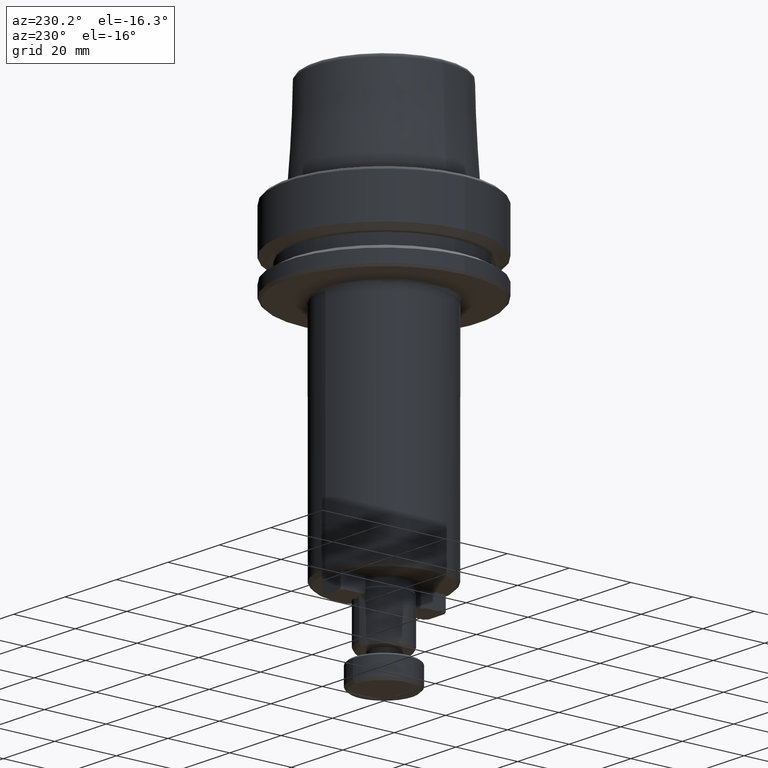
[diagram: clean part render]
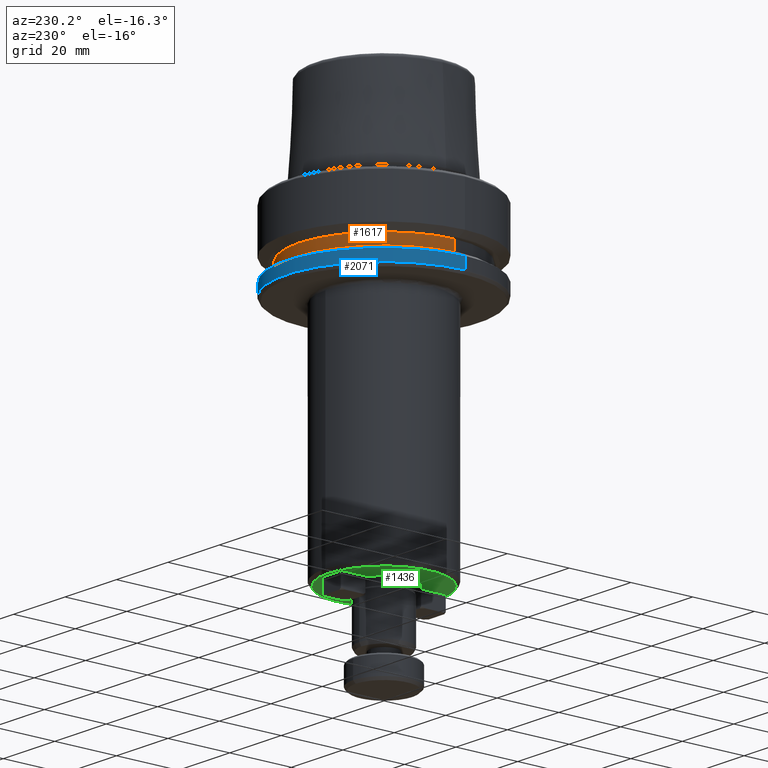
[diagram: same view with three faces highlighted in distinct colors, each labeled with its STEP entity id]
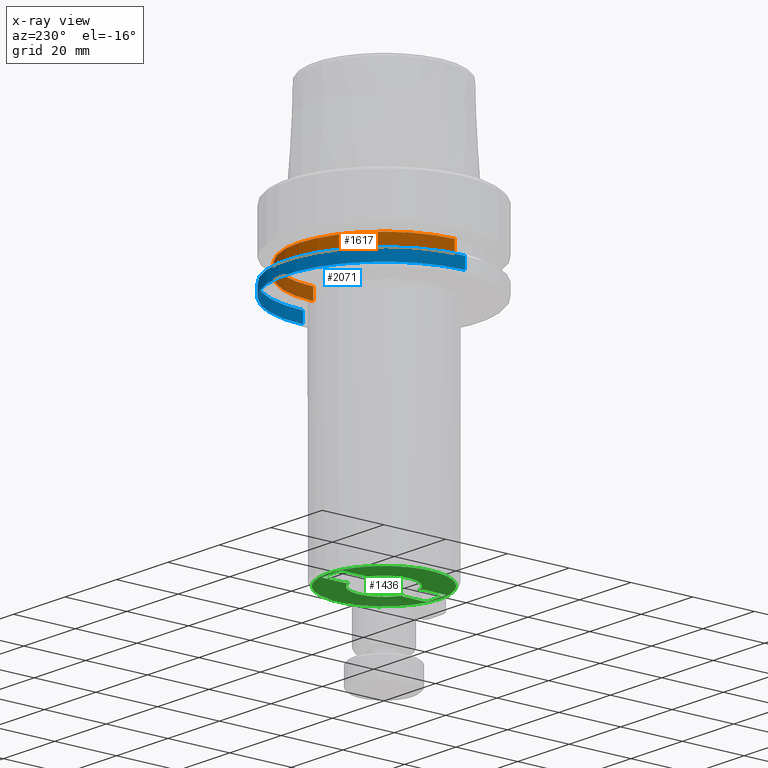
[diagram: x-ray of the same camera — body ghosted, the three highlighted faces saturated]
A machine part, auxiliary view with three faces highlighted in distinct colors.
The next image is the same camera in x-ray (body ghosted, the three faces saturated) — at least one of them is partly hidden behind the body in this view.
Their STEP definitions:

[orange] entity #1617 — the highlighted cylindrical surface (partial cylindrical patch) has radius 27.5 mm, axis along (-0, -0, 1).
#60 = LINE ( 'NONE', #1429, #1124 ) ;
#63 = EDGE_CURVE ( 'NONE', #2615, #378, #2659, .T. ) ;
#225 = DIRECTION ( 'NONE',  ( 1.000000000000000000, 0.0000000000000000000, 0.0000000000000000000 ) ) ;
#270 = DIRECTION ( 'NONE',  ( 1.000000000000000000, 0.0000000000000000000, 0.0000000000000000000 ) ) ;
#274 = DIRECTION ( 'NONE',  ( -0.0000000000000000000, -0.0000000000000000000, 1.000000000000000000 ) ) ;
#378 = VERTEX_POINT ( 'NONE', #1381 ) ;
#405 = VERTEX_POINT ( 'NONE', #2627 ) ;
#438 = CARTESIAN_POINT ( 'NONE',  ( 0.0000000000000000000, 0.0000000000000000000, -16.10000000000001600 ) ) ;
#444 = EDGE_CURVE ( 'NONE', #405, #1195, #60, .T. ) ;
#486 = CARTESIAN_POINT ( 'NONE',  ( 0.0000000000000000000, 0.0000000000000000000, -19.90000000000001600 ) ) ;
#536 = ORIENTED_EDGE ( 'NONE', *, *, #1410, .T. ) ;
#630 = CARTESIAN_POINT ( 'NONE',  ( 0.0000000000000000000, 0.0000000000000000000, 78.96908074195309300 ) ) ;
#693 = CARTESIAN_POINT ( 'NONE',  ( 27.49999999999999600, 0.0000000000000000000, -16.10000000000001600 ) ) ;
#953 = ORIENTED_EDGE ( 'NONE', *, *, #63, .T. ) ;
#997 = CYLINDRICAL_SURFACE ( 'NONE', #1755, 27.49999999999999600 ) ;
#1034 = CIRCLE ( 'NONE', #1524, 27.49999999999999600 ) ;
#1124 = VECTOR ( 'NONE', #1699, 1000.000000000000000 ) ;
#1195 = VERTEX_POINT ( 'NONE', #693 ) ;
#1201 = EDGE_LOOP ( 'NONE', ( #536, #953, #1544, #2371 ) ) ;
#1256 = DIRECTION ( 'NONE',  ( -0.0000000000000000000, -0.0000000000000000000, 1.000000000000000000 ) ) ;
#1381 = CARTESIAN_POINT ( 'NONE',  ( -27.49999999999999600, 3.367778697655220900E-015, -16.10000000000001600 ) ) ;
#1410 = EDGE_CURVE ( 'NONE', #405, #2615, #1034, .T. ) ;
#1429 = CARTESIAN_POINT ( 'NONE',  ( 27.49999999999999600, 0.0000000000000000000, 78.96908074195309300 ) ) ;
#1504 = CARTESIAN_POINT ( 'NONE',  ( -27.49999999999999600, 3.367778697655220900E-015, -19.90000000000001600 ) ) ;
#1512 = CIRCLE ( 'NONE', #1609, 27.49999999999999600 ) ;
#1524 = AXIS2_PLACEMENT_3D ( 'NONE', #486, #1777, #270 ) ;
#1544 = ORIENTED_EDGE ( 'NONE', *, *, #1641, .F. ) ;
#1573 = FACE_OUTER_BOUND ( 'NONE', #1201, .T. ) ;
#1609 = AXIS2_PLACEMENT_3D ( 'NONE', #438, #1256, #2102 ) ;
#1617 = ADVANCED_FACE ( 'NONE', ( #1573 ), #997, .T. ) ;
#1641 = EDGE_CURVE ( 'NONE', #1195, #378, #1512, .T. ) ;
#1699 = DIRECTION ( 'NONE',  ( -0.0000000000000000000, -0.0000000000000000000, 1.000000000000000000 ) ) ;
#1755 = AXIS2_PLACEMENT_3D ( 'NONE', #630, #1912, #225 ) ;
#1777 = DIRECTION ( 'NONE',  ( -0.0000000000000000000, -0.0000000000000000000, 1.000000000000000000 ) ) ;
#1912 = DIRECTION ( 'NONE',  ( -0.0000000000000000000, -0.0000000000000000000, 1.000000000000000000 ) ) ;
#2102 = DIRECTION ( 'NONE',  ( 1.000000000000000000, 0.0000000000000000000, 0.0000000000000000000 ) ) ;
#2231 = CARTESIAN_POINT ( 'NONE',  ( -27.49999999999999600, 3.367778697655220900E-015, 78.96908074195309300 ) ) ;
#2371 = ORIENTED_EDGE ( 'NONE', *, *, #444, .F. ) ;
#2593 = VECTOR ( 'NONE', #274, 1000.000000000000000 ) ;
#2615 = VERTEX_POINT ( 'NONE', #1504 ) ;
#2627 = CARTESIAN_POINT ( 'NONE',  ( 27.49999999999999600, 0.0000000000000000000, -19.90000000000001600 ) ) ;
#2659 = LINE ( 'NONE', #2231, #2593 ) ;

[blue] entity #2071 — the highlighted cylindrical surface (partial cylindrical patch) has radius 31.5 mm, axis along (-0, -0, 1).
#26 = VECTOR ( 'NONE', #2129, 1000.000000000000000 ) ;
#176 = ORIENTED_EDGE ( 'NONE', *, *, #1421, .T. ) ;
#226 = EDGE_CURVE ( 'NONE', #446, #1566, #1739, .T. ) ;
#307 = CARTESIAN_POINT ( 'NONE',  ( -31.50000000000000000, 3.857637417314162700E-015, 78.96908074195309300 ) ) ;
#399 = DIRECTION ( 'NONE',  ( -0.0000000000000000000, -0.0000000000000000000, 1.000000000000000000 ) ) ;
#402 = VECTOR ( 'NONE', #2064, 1000.000000000000000 ) ;
#446 = VERTEX_POINT ( 'NONE', #2481 ) ;
#528 = DIRECTION ( 'NONE',  ( -0.0000000000000000000, -0.0000000000000000000, 1.000000000000000000 ) ) ;
#654 = ORIENTED_EDGE ( 'NONE', *, *, #226, .F. ) ;
#864 = AXIS2_PLACEMENT_3D ( 'NONE', #2645, #1760, #1108 ) ;
#957 = CIRCLE ( 'NONE', #2104, 31.50000000000000000 ) ;
#998 = VERTEX_POINT ( 'NONE', #1927 ) ;
#1059 = CYLINDRICAL_SURFACE ( 'NONE', #864, 31.50000000000000000 ) ;
#1108 = DIRECTION ( 'NONE',  ( 1.000000000000000000, 0.0000000000000000000, 0.0000000000000000000 ) ) ;
#1296 = CARTESIAN_POINT ( 'NONE',  ( 31.50000000000000000, 0.0000000000000000000, 78.96908074195309300 ) ) ;
#1421 = EDGE_CURVE ( 'NONE', #998, #2693, #2048, .T. ) ;
#1430 = EDGE_CURVE ( 'NONE', #1566, #2693, #957, .T. ) ;
#1566 = VERTEX_POINT ( 'NONE', #2538 ) ;
#1682 = CARTESIAN_POINT ( 'NONE',  ( 0.0000000000000000000, 0.0000000000000000000, -25.03431457505077200 ) ) ;
#1739 = LINE ( 'NONE', #1296, #26 ) ;
#1760 = DIRECTION ( 'NONE',  ( -0.0000000000000000000, -0.0000000000000000000, 1.000000000000000000 ) ) ;
#1770 = FACE_OUTER_BOUND ( 'NONE', #2362, .T. ) ;
#1785 = ORIENTED_EDGE ( 'NONE', *, *, #2497, .T. ) ;
#1901 = DIRECTION ( 'NONE',  ( 1.000000000000000000, 0.0000000000000000000, 0.0000000000000000000 ) ) ;
#1927 = CARTESIAN_POINT ( 'NONE',  ( -31.50000000000000000, 3.857637417314161900E-015, -25.03431457505077200 ) ) ;
#1967 = CARTESIAN_POINT ( 'NONE',  ( -31.50000000000000000, 3.857637417314162700E-015, -21.37749907475931700 ) ) ;
#2048 = LINE ( 'NONE', #307, #402 ) ;
#2064 = DIRECTION ( 'NONE',  ( -0.0000000000000000000, -0.0000000000000000000, 1.000000000000000000 ) ) ;
#2071 = ADVANCED_FACE ( 'NONE', ( #1770 ), #1059, .T. ) ;
#2104 = AXIS2_PLACEMENT_3D ( 'NONE', #2787, #528, #2778 ) ;
#2129 = DIRECTION ( 'NONE',  ( -0.0000000000000000000, -0.0000000000000000000, 1.000000000000000000 ) ) ;
#2349 = AXIS2_PLACEMENT_3D ( 'NONE', #1682, #399, #1901 ) ;
#2350 = CIRCLE ( 'NONE', #2349, 31.50000000000000000 ) ;
#2362 = EDGE_LOOP ( 'NONE', ( #1785, #176, #2775, #654 ) ) ;
#2481 = CARTESIAN_POINT ( 'NONE',  ( 31.50000000000000000, 0.0000000000000000000, -25.03431457505077200 ) ) ;
#2497 = EDGE_CURVE ( 'NONE', #446, #998, #2350, .T. ) ;
#2538 = CARTESIAN_POINT ( 'NONE',  ( 31.50000000000000000, 0.0000000000000000000, -21.37749907475931700 ) ) ;
#2645 = CARTESIAN_POINT ( 'NONE',  ( 0.0000000000000000000, 0.0000000000000000000, 78.96908074195309300 ) ) ;
#2693 = VERTEX_POINT ( 'NONE', #1967 ) ;
#2775 = ORIENTED_EDGE ( 'NONE', *, *, #1430, .F. ) ;
#2778 = DIRECTION ( 'NONE',  ( 1.000000000000000000, 0.0000000000000000000, 0.0000000000000000000 ) ) ;
#2787 = CARTESIAN_POINT ( 'NONE',  ( 0.0000000000000000000, 0.0000000000000000000, -21.37749907475931700 ) ) ;

[green] entity #1436 — the highlighted planar face has unit normal (-0, 0, -1).
#23 = CARTESIAN_POINT ( 'NONE',  ( -3.600000000000001400, -17.00000000000000700, -100.0000000000000000 ) ) ;
#40 = VERTEX_POINT ( 'NONE', #1182 ) ;
#65 = DIRECTION ( 'NONE',  ( 3.614007241618347300E-016, 1.000000000000000000, -0.0000000000000000000 ) ) ;
#72 = CARTESIAN_POINT ( 'NONE',  ( 3.600000000000002300, 9.000000000000007100, -100.0000000000000000 ) ) ;
#85 = AXIS2_PLACEMENT_3D ( 'NONE', #977, #2287, #1202 ) ;
#119 = EDGE_CURVE ( 'NONE', #643, #817, #224, .T. ) ;
#142 = DIRECTION ( 'NONE',  ( -0.0000000000000000000, 7.401711423418070600E-017, -1.000000000000000000 ) ) ;
#160 = DIRECTION ( 'NONE',  ( 0.0000000000000000000, 1.000000000000000000, 0.0000000000000000000 ) ) ;
#168 = CARTESIAN_POINT ( 'NONE',  ( -3.600000000000000100, 17.00000000000000700, -100.0000000000000000 ) ) ;
#191 = CARTESIAN_POINT ( 'NONE',  ( -3.600000000000002300, -9.000000000000007100, -100.0000000000000000 ) ) ;
#192 = VERTEX_POINT ( 'NONE', #168 ) ;
#201 = DIRECTION ( 'NONE',  ( -3.614007241618347300E-016, -1.000000000000000000, 0.0000000000000000000 ) ) ;
#224 = LINE ( 'NONE', #72, #2446 ) ;
#244 = VERTEX_POINT ( 'NONE', #1734 ) ;
#250 = EDGE_CURVE ( 'NONE', #840, #2311, #1669, .T. ) ;
#267 = EDGE_CURVE ( 'NONE', #1594, #40, #2771, .T. ) ;
#271 = DIRECTION ( 'NONE',  ( 0.7071067811865483500, 0.7071067811865468000, 0.0000000000000000000 ) ) ;
#272 = VECTOR ( 'NONE', #201, 1000.000000000000000 ) ;
#296 = CIRCLE ( 'NONE', #1700, 9.479999999999995100 ) ;
#298 = ORIENTED_EDGE ( 'NONE', *, *, #680, .F. ) ;
#324 = CARTESIAN_POINT ( 'NONE',  ( 3.600000000000000100, -17.00000000000000700, -100.0000000000000000 ) ) ;
#340 = VERTEX_POINT ( 'NONE', #2281 ) ;
#342 = VERTEX_POINT ( 'NONE', #1253 ) ;
#373 = ORIENTED_EDGE ( 'NONE', *, *, #754, .F. ) ;
#437 = CARTESIAN_POINT ( 'NONE',  ( 0.0000000000000000000, 5.477266453329372300E-015, -100.0000000000000000 ) ) ;
#453 = DIRECTION ( 'NONE',  ( -1.000000000000000000, 0.0000000000000000000, 0.0000000000000000000 ) ) ;
#472 = VERTEX_POINT ( 'NONE', #794 ) ;
#477 = LINE ( 'NONE', #191, #2722 ) ;
#490 = LINE ( 'NONE', #2222, #2665 ) ;
#496 = ORIENTED_EDGE ( 'NONE', *, *, #909, .F. ) ;
#506 = DIRECTION ( 'NONE',  ( 0.7071067811865468000, -0.7071067811865483500, 0.0000000000000000000 ) ) ;
#511 = LINE ( 'NONE', #2026, #1583 ) ;
#545 = VERTEX_POINT ( 'NONE', #1191 ) ;
#548 = LINE ( 'NONE', #2351, #2801 ) ;
#557 = EDGE_CURVE ( 'NONE', #777, #643, #1754, .T. ) ;
#568 = LINE ( 'NONE', #1363, #1083 ) ;
#571 = VERTEX_POINT ( 'NONE', #2072 ) ;
#612 = CARTESIAN_POINT ( 'NONE',  ( -3.600000000000002300, 9.000000000000007100, -100.0000000000000000 ) ) ;
#632 = DIRECTION ( 'NONE',  ( -0.7071067811865483500, 0.7071067811865468000, -0.0000000000000000000 ) ) ;
#637 = DIRECTION ( 'NONE',  ( 0.0000000000000000000, 1.000000000000000000, 0.0000000000000000000 ) ) ;
#643 = VERTEX_POINT ( 'NONE', #1635 ) ;
#665 = ORIENTED_EDGE ( 'NONE', *, *, #1456, .F. ) ;
#674 = DIRECTION ( 'NONE',  ( 1.204669080539449100E-016, -1.000000000000000000, 0.0000000000000000000 ) ) ;
#680 = EDGE_CURVE ( 'NONE', #2535, #777, #477, .T. ) ;
#686 = CARTESIAN_POINT ( 'NONE',  ( -3.600000000000001400, -17.00000000000000700, -100.0000000000000000 ) ) ;
#687 = EDGE_CURVE ( 'NONE', #1164, #571, #2202, .T. ) ;
#696 = VERTEX_POINT ( 'NONE', #1219 ) ;
#716 = VECTOR ( 'NONE', #2095, 1000.000000000000000 ) ;
#736 = VERTEX_POINT ( 'NONE', #324 ) ;
#737 = CARTESIAN_POINT ( 'NONE',  ( 3.600000000000001400, 17.00000000000000700, -100.0000000000000000 ) ) ;
#747 = VECTOR ( 'NONE', #1510, 1000.000000000000000 ) ;
#754 = EDGE_CURVE ( 'NONE', #472, #1605, #1991, .T. ) ;
#777 = VERTEX_POINT ( 'NONE', #2811 ) ;
#786 = ORIENTED_EDGE ( 'NONE', *, *, #1041, .F. ) ;
#794 = CARTESIAN_POINT ( 'NONE',  ( 4.000000000000002700, -9.400000000000005700, -100.0000000000000000 ) ) ;
#801 = CARTESIAN_POINT ( 'NONE',  ( 3.600000000000000100, -17.00000000000000700, -100.0000000000000000 ) ) ;
#817 = VERTEX_POINT ( 'NONE', #612 ) ;
#825 = VECTOR ( 'NONE', #1741, 1000.000000000000000 ) ;
#832 = AXIS2_PLACEMENT_3D ( 'NONE', #437, #1939, #637 ) ;
#840 = VERTEX_POINT ( 'NONE', #2666 ) ;
#862 = ORIENTED_EDGE ( 'NONE', *, *, #2806, .F. ) ;
#874 = VECTOR ( 'NONE', #506, 1000.000000000000000 ) ;
#898 = EDGE_CURVE ( 'NONE', #244, #340, #568, .T. ) ;
#909 = EDGE_CURVE ( 'NONE', #2150, #696, #511, .T. ) ;
#937 = LINE ( 'NONE', #1793, #874 ) ;
#966 = CARTESIAN_POINT ( 'NONE',  ( 2.978321675037787700, 9.000000000000007100, -100.0000000000000000 ) ) ;
#977 = CARTESIAN_POINT ( 'NONE',  ( 0.0000000000000000000, 5.477266453329372300E-015, -100.0000000000000000 ) ) ;
#995 = EDGE_CURVE ( 'NONE', #342, #545, #2502, .T. ) ;
#1024 = DIRECTION ( 'NONE',  ( 0.0000000000000000000, 1.000000000000000000, 7.401711423418070600E-017 ) ) ;
#1025 = VECTOR ( 'NONE', #65, 1000.000000000000000 ) ;
#1041 = EDGE_CURVE ( 'NONE', #40, #192, #1781, .T. ) ;
#1051 = DIRECTION ( 'NONE',  ( -0.7071067811865468000, 0.7071067811865483500, 0.0000000000000000000 ) ) ;
#1055 = ORIENTED_EDGE ( 'NONE', *, *, #119, .F. ) ;
#1074 = CARTESIAN_POINT ( 'NONE',  ( -4.000000000000002700, 9.400000000000005700, -100.0000000000000000 ) ) ;
#1083 = VECTOR ( 'NONE', #674, 1000.000000000000000 ) ;
#1094 = VECTOR ( 'NONE', #1465, 1000.000000000000000 ) ;
#1099 = EDGE_LOOP ( 'NONE', ( #2594, #1424 ) ) ;
#1163 = PLANE ( 'NONE',  #2697 ) ;
#1164 = VERTEX_POINT ( 'NONE', #2412 ) ;
#1168 = ORIENTED_EDGE ( 'NONE', *, *, #2524, .F. ) ;
#1182 = CARTESIAN_POINT ( 'NONE',  ( -4.000000000000000000, 16.60000000000000900, -100.0000000000000000 ) ) ;
#1191 = CARTESIAN_POINT ( 'NONE',  ( 3.600000000000002300, -9.000000000000007100, -100.0000000000000000 ) ) ;
#1197 = CARTESIAN_POINT ( 'NONE',  ( 4.000000000000002700, 9.400000000000005700, -100.0000000000000000 ) ) ;
#1202 = DIRECTION ( 'NONE',  ( 0.0000000000000000000, 1.000000000000000000, 0.0000000000000000000 ) ) ;
#1219 = CARTESIAN_POINT ( 'NONE',  ( -4.000000000000002700, -9.400000000000005700, -100.0000000000000000 ) ) ;
#1242 = VERTEX_POINT ( 'NONE', #737 ) ;
#1250 = ORIENTED_EDGE ( 'NONE', *, *, #995, .F. ) ;
#1253 = CARTESIAN_POINT ( 'NONE',  ( 2.978321675037760100, -9.000000000000007100, -100.0000000000000000 ) ) ;
#1286 = AXIS2_PLACEMENT_3D ( 'NONE', #2325, #1656, #160 ) ;
#1293 = CARTESIAN_POINT ( 'NONE',  ( 3.600000000000001400, 17.00000000000000700, -100.0000000000000000 ) ) ;
#1307 = ORIENTED_EDGE ( 'NONE', *, *, #2136, .F. ) ;
#1354 = CARTESIAN_POINT ( 'NONE',  ( -4.000000000000001800, -16.60000000000000900, -100.0000000000000000 ) ) ;
#1363 = CARTESIAN_POINT ( 'NONE',  ( 4.000000000000001800, 16.60000000000000900, -100.0000000000000000 ) ) ;
#1375 = VERTEX_POINT ( 'NONE', #23 ) ;
#1380 = ORIENTED_EDGE ( 'NONE', *, *, #267, .F. ) ;
#1403 = LINE ( 'NONE', #1074, #1908 ) ;
#1422 = CIRCLE ( 'NONE', #832, 18.00000000000000400 ) ;
#1424 = ORIENTED_EDGE ( 'NONE', *, *, #687, .T. ) ;
#1425 = CARTESIAN_POINT ( 'NONE',  ( 0.0000000000000000000, 5.477266453329372300E-015, -100.0000000000000000 ) ) ;
#1426 = CARTESIAN_POINT ( 'NONE',  ( -4.000000000000000000, 16.60000000000000900, -100.0000000000000000 ) ) ;
#1432 = DIRECTION ( 'NONE',  ( 1.000000000000000000, 0.0000000000000000000, 0.0000000000000000000 ) ) ;
#1436 = ADVANCED_FACE ( 'NONE', ( #1478, #2646 ), #1163, .T. ) ;
#1456 = EDGE_CURVE ( 'NONE', #736, #1375, #2498, .T. ) ;
#1465 = DIRECTION ( 'NONE',  ( -1.000000000000000000, 0.0000000000000000000, 0.0000000000000000000 ) ) ;
#1467 = CARTESIAN_POINT ( 'NONE',  ( -3.600000000000002300, -9.000000000000007100, -100.0000000000000000 ) ) ;
#1478 = FACE_OUTER_BOUND ( 'NONE', #1099, .T. ) ;
#1510 = DIRECTION ( 'NONE',  ( 1.000000000000000000, -0.0000000000000000000, -0.0000000000000000000 ) ) ;
#1516 = CARTESIAN_POINT ( 'NONE',  ( -3.600000000000000100, 17.00000000000000700, -100.0000000000000000 ) ) ;
#1525 = ORIENTED_EDGE ( 'NONE', *, *, #2366, .F. ) ;
#1580 = ORIENTED_EDGE ( 'NONE', *, *, #557, .F. ) ;
#1583 = VECTOR ( 'NONE', #1689, 1000.000000000000000 ) ;
#1594 = VERTEX_POINT ( 'NONE', #1703 ) ;
#1605 = VERTEX_POINT ( 'NONE', #2372 ) ;
#1627 = ORIENTED_EDGE ( 'NONE', *, *, #250, .F. ) ;
#1635 = CARTESIAN_POINT ( 'NONE',  ( -2.978321675037787700, 9.000000000000007100, -100.0000000000000000 ) ) ;
#1637 = DIRECTION ( 'NONE',  ( 0.0000000000000000000, 1.000000000000000000, 0.0000000000000000000 ) ) ;
#1656 = DIRECTION ( 'NONE',  ( -0.0000000000000000000, 7.401711423418070600E-017, -1.000000000000000000 ) ) ;
#1669 = LINE ( 'NONE', #2087, #1094 ) ;
#1689 = DIRECTION ( 'NONE',  ( -1.204669080539449100E-016, 1.000000000000000000, 0.0000000000000000000 ) ) ;
#1700 = AXIS2_PLACEMENT_3D ( 'NONE', #1425, #142, #1637 ) ;
#1703 = CARTESIAN_POINT ( 'NONE',  ( -4.000000000000002700, 9.400000000000005700, -100.0000000000000000 ) ) ;
#1734 = CARTESIAN_POINT ( 'NONE',  ( 4.000000000000001800, 16.60000000000000900, -100.0000000000000000 ) ) ;
#1735 = EDGE_CURVE ( 'NONE', #2311, #342, #296, .T. ) ;
#1741 = DIRECTION ( 'NONE',  ( -1.000000000000000000, 0.0000000000000000000, 0.0000000000000000000 ) ) ;
#1754 = CIRCLE ( 'NONE', #1286, 9.479999999999995100 ) ;
#1781 = LINE ( 'NONE', #1516, #2364 ) ;
#1793 = CARTESIAN_POINT ( 'NONE',  ( 3.600000000000001400, 17.00000000000000700, -100.0000000000000000 ) ) ;
#1806 = LINE ( 'NONE', #801, #1876 ) ;
#1808 = ORIENTED_EDGE ( 'NONE', *, *, #2009, .F. ) ;
#1826 = DIRECTION ( 'NONE',  ( 1.000000000000000000, 0.0000000000000000000, 0.0000000000000000000 ) ) ;
#1831 = EDGE_CURVE ( 'NONE', #340, #840, #2456, .T. ) ;
#1834 = EDGE_CURVE ( 'NONE', #1605, #736, #1806, .T. ) ;
#1876 = VECTOR ( 'NONE', #2326, 1000.000000000000000 ) ;
#1908 = VECTOR ( 'NONE', #632, 1000.000000000000000 ) ;
#1919 = VECTOR ( 'NONE', #1826, 1000.000000000000000 ) ;
#1931 = ORIENTED_EDGE ( 'NONE', *, *, #1831, .F. ) ;
#1939 = DIRECTION ( 'NONE',  ( -0.0000000000000000000, 7.401711423418070600E-017, -1.000000000000000000 ) ) ;
#1991 = LINE ( 'NONE', #2374, #272 ) ;
#2002 = EDGE_CURVE ( 'NONE', #817, #1594, #1403, .T. ) ;
#2009 = EDGE_CURVE ( 'NONE', #192, #1242, #2489, .T. ) ;
#2026 = CARTESIAN_POINT ( 'NONE',  ( -4.000000000000001800, -16.60000000000000900, -100.0000000000000000 ) ) ;
#2027 = EDGE_LOOP ( 'NONE', ( #1580, #298, #1307, #496, #1168, #665, #2796, #373, #1525, #1250, #2198, #1627, #1931, #2503, #862, #1808, #786, #1380, #2335, #1055 ) ) ;
#2040 = VECTOR ( 'NONE', #2294, 1000.000000000000000 ) ;
#2069 = CARTESIAN_POINT ( 'NONE',  ( 4.000000000000002700, -9.400000000000005700, -100.0000000000000000 ) ) ;
#2072 = CARTESIAN_POINT ( 'NONE',  ( 0.0000000000000000000, -17.99999999999999600, -100.0000000000000000 ) ) ;
#2087 = CARTESIAN_POINT ( 'NONE',  ( 3.600000000000002300, 9.000000000000007100, -100.0000000000000000 ) ) ;
#2095 = DIRECTION ( 'NONE',  ( -0.7071067811865483500, -0.7071067811865468000, 0.0000000000000000000 ) ) ;
#2136 = EDGE_CURVE ( 'NONE', #696, #2535, #490, .T. ) ;
#2150 = VERTEX_POINT ( 'NONE', #1354 ) ;
#2198 = ORIENTED_EDGE ( 'NONE', *, *, #1735, .F. ) ;
#2202 = CIRCLE ( 'NONE', #85, 18.00000000000000400 ) ;
#2222 = CARTESIAN_POINT ( 'NONE',  ( -4.000000000000002700, -9.400000000000005700, -100.0000000000000000 ) ) ;
#2227 = DIRECTION ( 'NONE',  ( -0.0000000000000000000, 7.401711423418070600E-017, -1.000000000000000000 ) ) ;
#2281 = CARTESIAN_POINT ( 'NONE',  ( 4.000000000000002700, 9.400000000000005700, -100.0000000000000000 ) ) ;
#2287 = DIRECTION ( 'NONE',  ( -0.0000000000000000000, 7.401711423418070600E-017, -1.000000000000000000 ) ) ;
#2294 = DIRECTION ( 'NONE',  ( 0.7071067811865483500, -0.7071067811865468000, 0.0000000000000000000 ) ) ;
#2311 = VERTEX_POINT ( 'NONE', #966 ) ;
#2325 = CARTESIAN_POINT ( 'NONE',  ( 0.0000000000000000000, 5.477266453329372300E-015, -100.0000000000000000 ) ) ;
#2326 = DIRECTION ( 'NONE',  ( -0.7071067811865468000, -0.7071067811865483500, 0.0000000000000000000 ) ) ;
#2335 = ORIENTED_EDGE ( 'NONE', *, *, #2002, .F. ) ;
#2351 = CARTESIAN_POINT ( 'NONE',  ( -3.600000000000001400, -17.00000000000000700, -100.0000000000000000 ) ) ;
#2364 = VECTOR ( 'NONE', #2403, 1000.000000000000000 ) ;
#2366 = EDGE_CURVE ( 'NONE', #545, #472, #2766, .T. ) ;
#2372 = CARTESIAN_POINT ( 'NONE',  ( 4.000000000000000000, -16.60000000000000900, -100.0000000000000000 ) ) ;
#2374 = CARTESIAN_POINT ( 'NONE',  ( 4.000000000000000000, -16.60000000000000900, -100.0000000000000000 ) ) ;
#2403 = DIRECTION ( 'NONE',  ( 0.7071067811865468000, 0.7071067811865483500, -0.0000000000000000000 ) ) ;
#2412 = CARTESIAN_POINT ( 'NONE',  ( 2.265596578422603400E-015, 18.00000000000001100, -100.0000000000000000 ) ) ;
#2446 = VECTOR ( 'NONE', #453, 1000.000000000000000 ) ;
#2456 = LINE ( 'NONE', #1197, #716 ) ;
#2489 = LINE ( 'NONE', #1293, #747 ) ;
#2498 = LINE ( 'NONE', #686, #825 ) ;
#2502 = LINE ( 'NONE', #2642, #1919 ) ;
#2503 = ORIENTED_EDGE ( 'NONE', *, *, #898, .F. ) ;
#2524 = EDGE_CURVE ( 'NONE', #1375, #2150, #548, .T. ) ;
#2535 = VERTEX_POINT ( 'NONE', #1467 ) ;
#2594 = ORIENTED_EDGE ( 'NONE', *, *, #2600, .T. ) ;
#2600 = EDGE_CURVE ( 'NONE', #571, #1164, #1422, .T. ) ;
#2606 = CARTESIAN_POINT ( 'NONE',  ( 0.0000000000000000000, 18.00000000000001100, -100.0000000000000000 ) ) ;
#2642 = CARTESIAN_POINT ( 'NONE',  ( -3.600000000000002300, -9.000000000000007100, -100.0000000000000000 ) ) ;
#2646 = FACE_BOUND ( 'NONE', #2027, .T. ) ;
#2665 = VECTOR ( 'NONE', #271, 1000.000000000000000 ) ;
#2666 = CARTESIAN_POINT ( 'NONE',  ( 3.600000000000002300, 9.000000000000007100, -100.0000000000000000 ) ) ;
#2697 = AXIS2_PLACEMENT_3D ( 'NONE', #2606, #2227, #1024 ) ;
#2722 = VECTOR ( 'NONE', #1432, 1000.000000000000000 ) ;
#2766 = LINE ( 'NONE', #2069, #2040 ) ;
#2771 = LINE ( 'NONE', #1426, #1025 ) ;
#2796 = ORIENTED_EDGE ( 'NONE', *, *, #1834, .F. ) ;
#2801 = VECTOR ( 'NONE', #1051, 1000.000000000000000 ) ;
#2806 = EDGE_CURVE ( 'NONE', #1242, #244, #937, .T. ) ;
#2811 = CARTESIAN_POINT ( 'NONE',  ( -2.978321675037753000, -9.000000000000007100, -100.0000000000000000 ) ) ;